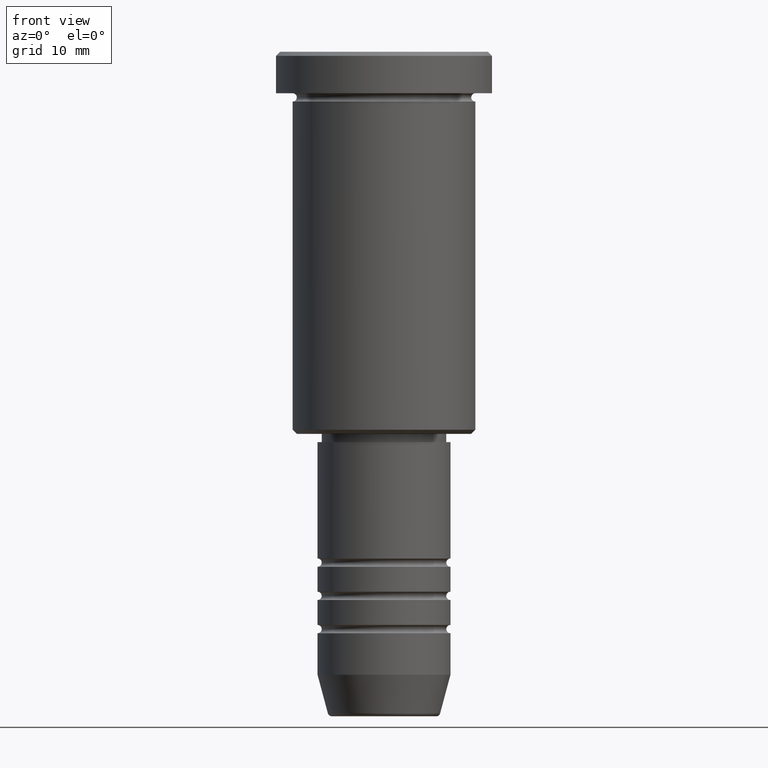
[diagram: clean part render]
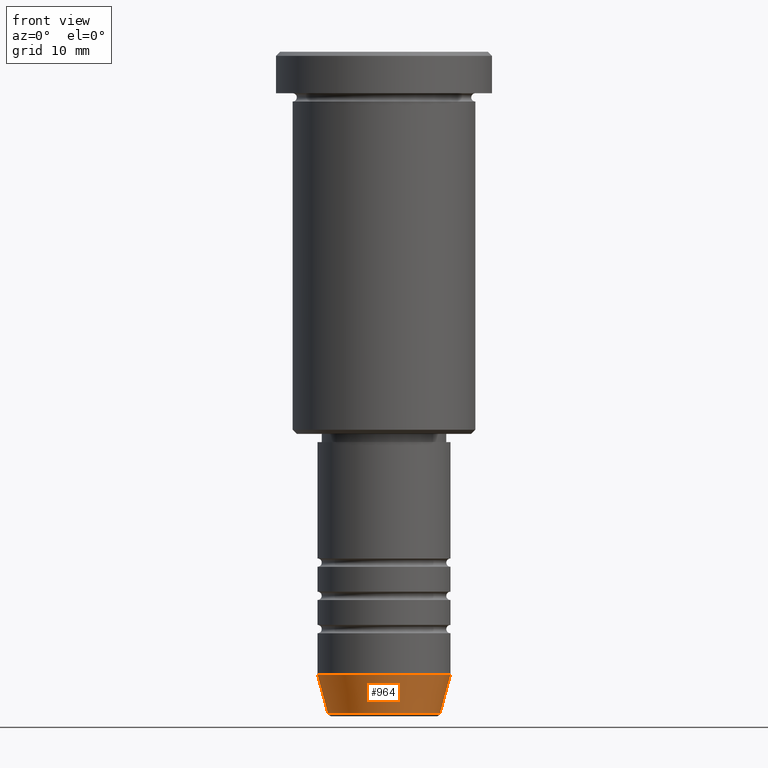
[diagram: same view with one face highlighted and labeled with its STEP entity id]
A machine part, front view. The second image highlights one B-rep face of the part: STEP entity #964.
In plain terms, the highlighted conical surface has half-angle 15 deg.
Its self-contained STEP definition (entity closure, byte-faithful):
#41 = LINE ( 'NONE', #489, #469 ) ;
#110 = CIRCLE ( 'NONE', #1125, 6.759553456999440435 ) ;
#161 = DIRECTION ( 'NONE',  ( -0.2588190451025214611, 3.169619151431774186E-17, 0.9659258262890679791 ) ) ;
#164 = CONICAL_SURFACE ( 'NONE', #282, 8.000000000000000000, 0.2617993877991502405 ) ;
#176 = CARTESIAN_POINT ( 'NONE',  ( -8.000000000000000000, 9.797174393178825657E-16, -75.00000000000001421 ) ) ;
#213 = DIRECTION ( 'NONE',  ( 0.2588190451025214611, 0.000000000000000000, 0.9659258262890679791 ) ) ;
#282 = AXIS2_PLACEMENT_3D ( 'NONE', #617, #354, #450 ) ;
#292 = DIRECTION ( 'NONE',  ( -0.000000000000000000, -0.000000000000000000, 1.000000000000000000 ) ) ;
#298 = DIRECTION ( 'NONE',  ( 1.000000000000000000, 0.000000000000000000, 0.000000000000000000 ) ) ;
#354 = DIRECTION ( 'NONE',  ( -0.000000000000000000, -0.000000000000000000, 1.000000000000000000 ) ) ;
#368 = LINE ( 'NONE', #176, #504 ) ;
#369 = ORIENTED_EDGE ( 'NONE', *, *, #1174, .T. ) ;
#373 = CARTESIAN_POINT ( 'NONE',  ( -6.759553456999441323, 9.037619948979308185E-16, -79.62940952255127058 ) ) ;
#450 = DIRECTION ( 'NONE',  ( 1.000000000000000000, 0.000000000000000000, 0.000000000000000000 ) ) ;
#469 = VECTOR ( 'NONE', #213, 1000.000000000000114 ) ;
#480 = ORIENTED_EDGE ( 'NONE', *, *, #891, .F. ) ;
#489 = CARTESIAN_POINT ( 'NONE',  ( 8.000000000000000000, 0.000000000000000000, -75.00000000000001421 ) ) ;
#504 = VECTOR ( 'NONE', #161, 1000.000000000000114 ) ;
#519 = VERTEX_POINT ( 'NONE', #640 ) ;
#544 = ORIENTED_EDGE ( 'NONE', *, *, #673, .T. ) ;
#562 = CARTESIAN_POINT ( 'NONE',  ( 0.000000000000000000, 0.000000000000000000, -75.00000000000001421 ) ) ;
#577 = DIRECTION ( 'NONE',  ( 1.000000000000000000, 0.000000000000000000, 0.000000000000000000 ) ) ;
#617 = CARTESIAN_POINT ( 'NONE',  ( 0.000000000000000000, 0.000000000000000000, -75.00000000000001421 ) ) ;
#638 = VERTEX_POINT ( 'NONE', #1031 ) ;
#640 = CARTESIAN_POINT ( 'NONE',  ( -8.000000000000000000, 9.797174393178825657E-16, -75.00000000000001421 ) ) ;
#659 = EDGE_LOOP ( 'NONE', ( #480, #544, #369, #1153 ) ) ;
#673 = EDGE_CURVE ( 'NONE', #999, #638, #110, .T. ) ;
#731 = VERTEX_POINT ( 'NONE', #1158 ) ;
#760 = CIRCLE ( 'NONE', #1162, 8.000000000000000000 ) ;
#849 = CARTESIAN_POINT ( 'NONE',  ( 0.000000000000000000, 0.000000000000000000, -79.62940952255127058 ) ) ;
#891 = EDGE_CURVE ( 'NONE', #999, #519, #368, .T. ) ;
#964 = ADVANCED_FACE ( 'NONE', ( #991 ), #164, .T. ) ;
#991 = FACE_OUTER_BOUND ( 'NONE', #659, .T. ) ;
#999 = VERTEX_POINT ( 'NONE', #373 ) ;
#1031 = CARTESIAN_POINT ( 'NONE',  ( 6.759553456999440435, 0.000000000000000000, -79.62940952255127058 ) ) ;
#1075 = EDGE_CURVE ( 'NONE', #519, #731, #760, .T. ) ;
#1113 = DIRECTION ( 'NONE',  ( -0.000000000000000000, -0.000000000000000000, 1.000000000000000000 ) ) ;
#1125 = AXIS2_PLACEMENT_3D ( 'NONE', #849, #1113, #298 ) ;
#1153 = ORIENTED_EDGE ( 'NONE', *, *, #1075, .F. ) ;
#1158 = CARTESIAN_POINT ( 'NONE',  ( 8.000000000000000000, 0.000000000000000000, -75.00000000000001421 ) ) ;
#1162 = AXIS2_PLACEMENT_3D ( 'NONE', #562, #292, #577 ) ;
#1174 = EDGE_CURVE ( 'NONE', #638, #731, #41, .T. ) ;